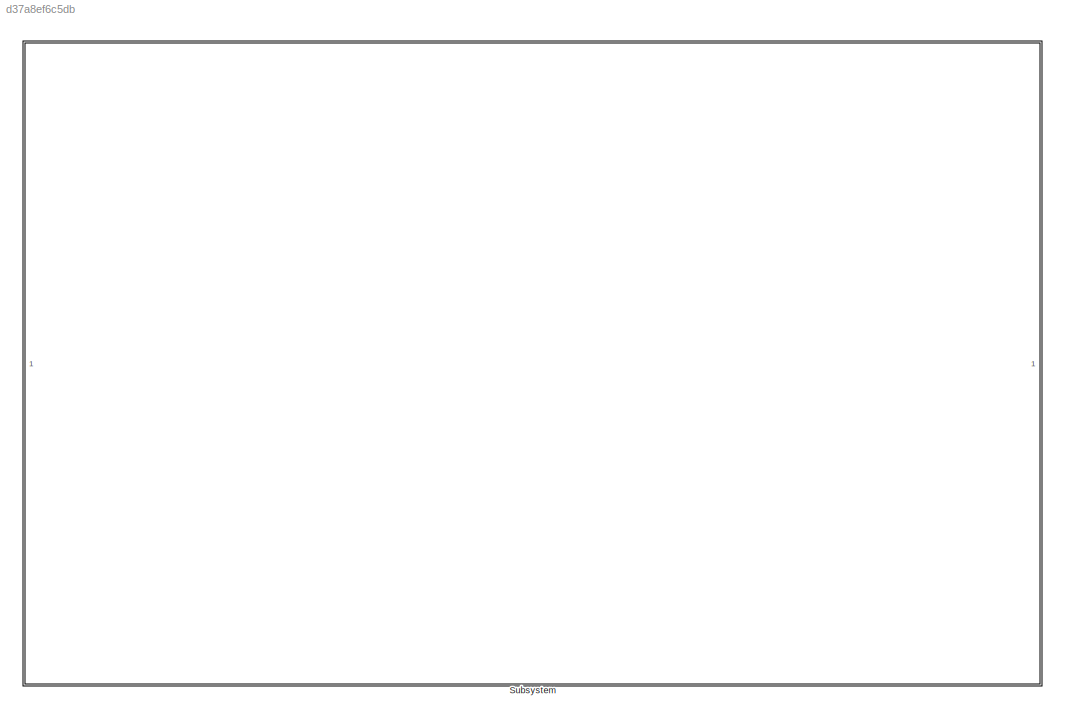
MODEL slx_d37a8ef6c5db
KIND model
CONFIG AbsTol = auto
CONFIG EnableMultiTasking = off
CONFIG FixedStep = auto
CONFIG MaxStep = auto
CONFIG MinStep = auto
CONFIG RelTol = 1e-3
CONFIG SampleTimeConstraint = Unconstrained
CONFIG SolverName = VariableStepAuto
CONFIG StartTime = 0.0
CONFIG StopTime = 10.0
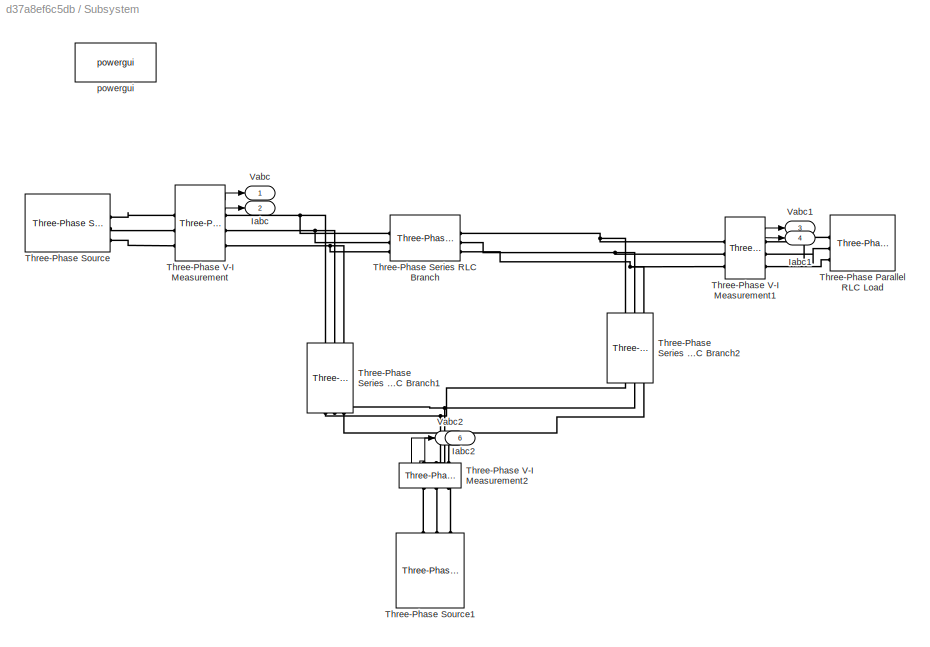
BLOCK [SubSystem] Subsystem
BLOCK [Outport] Subsystem/Iabc
  Port = 2
BLOCK [Outport] Subsystem/Iabc1
  Port = 4
BLOCK [Outport] Subsystem/Iabc2
  Port = 6
BLOCK [Reference] Subsystem/Three-Phase Parallel RLC Load  REF=spsThreePhaseParallelRLCLoadLib/Three-Phase
Parallel RLC Load
  AttributesFormatString = \n
  LibrarySourceBlock = sps_lib/Passives/Three-Phase\nParallel RLC Load
  NameLocation = right
  SourceBlock = spsThreePhaseParallelRLCLoadLib/Three-Phase\nParallel RLC Load
  SourceType = Three-Phase Parallel RLC Load
BLOCK [Reference] Subsystem/Three-Phase Series RLC Branch  REF=spsThreePhaseSeriesRLCBranchLib/Three-Phase
Series RLC Branch
  AttributesFormatString = \n
  LibrarySourceBlock = sps_lib/Passives/Three-Phase\nSeries RLC Branch
  SourceBlock = spsThreePhaseSeriesRLCBranchLib/Three-Phase\nSeries RLC Branch
  SourceType = Three-Phase Series RLC Branch
BLOCK [Reference] Subsystem/Three-Phase Series RLC Branch1  REF=spsThreePhaseSeriesRLCBranchLib/Three-Phase
Series RLC Branch
  AttributesFormatString = \n
  LibrarySourceBlock = sps_lib/Passives/Three-Phase\nSeries RLC Branch
  NameLocation = left
  SourceBlock = spsThreePhaseSeriesRLCBranchLib/Three-Phase\nSeries RLC Branch
  SourceType = Three-Phase Series RLC Branch
BLOCK [Reference] Subsystem/Three-Phase Series RLC Branch2  REF=spsThreePhaseSeriesRLCBranchLib/Three-Phase
Series RLC Branch
  AttributesFormatString = \n
  LibrarySourceBlock = sps_lib/Passives/Three-Phase\nSeries RLC Branch
  NameLocation = left
  SourceBlock = spsThreePhaseSeriesRLCBranchLib/Three-Phase\nSeries RLC Branch
  SourceType = Three-Phase Series RLC Branch
BLOCK [Reference] Subsystem/Three-Phase Source  REF=spsThreePhaseSourceLib/Three-Phase Source
  LibrarySourceBlock = sps_lib/Sources/Three-Phase Source
  SourceBlock = spsThreePhaseSourceLib/Three-Phase Source
  SourceType = Three-Phase Source
BLOCK [Reference] Subsystem/Three-Phase Source1  REF=spsThreePhaseSourceLib/Three-Phase Source
  LibrarySourceBlock = sps_lib/Sources/Three-Phase Source
  NameLocation = right
  SourceBlock = spsThreePhaseSourceLib/Three-Phase Source
  SourceType = Three-Phase Source
BLOCK [Reference] Subsystem/Three-Phase V-I Measurement  REF=spsThreePhaseVIMeasurementLib/Three-Phase
V-I Measurement
  LibrarySourceBlock = sps_lib/Sensors and Measurements/Three-Phase\nV-I Measurement
  SourceBlock = spsThreePhaseVIMeasurementLib/Three-Phase\nV-I Measurement
  SourceType = Three-Phase VI Measurement
BLOCK [Reference] Subsystem/Three-Phase V-I Measurement1  REF=spsThreePhaseVIMeasurementLib/Three-Phase
V-I Measurement
  LibrarySourceBlock = sps_lib/Sensors and Measurements/Three-Phase\nV-I Measurement
  SourceBlock = spsThreePhaseVIMeasurementLib/Three-Phase\nV-I Measurement
  SourceType = Three-Phase VI Measurement
BLOCK [Reference] Subsystem/Three-Phase V-I Measurement2  REF=spsThreePhaseVIMeasurementLib/Three-Phase
V-I Measurement
  LibrarySourceBlock = sps_lib/Sensors and Measurements/Three-Phase\nV-I Measurement
  NameLocation = right
  SourceBlock = spsThreePhaseVIMeasurementLib/Three-Phase\nV-I Measurement
  SourceType = Three-Phase VI Measurement
BLOCK [Outport] Subsystem/Vabc
BLOCK [Outport] Subsystem/Vabc1
  Port = 3
BLOCK [Outport] Subsystem/Vabc2
  Port = 5
BLOCK [Reference] Subsystem/powergui  REF=sps_lib/powergui
  LibrarySourceBlock = sps_lib/powergui
  Priority = 1
  SourceBlock = sps_lib/powergui
  SourceType = PSB option menu block
LINE Subsystem/Three-Phase V-I Measurement1:1 -> Subsystem/Vabc1:1
LINE Subsystem/Three-Phase V-I Measurement1:2 -> Subsystem/Iabc1:1
LINE Subsystem/Three-Phase V-I Measurement2:1 -> Subsystem/Vabc2:1
LINE Subsystem/Three-Phase V-I Measurement2:2 -> Subsystem/Iabc2:1
LINE Subsystem/Three-Phase V-I Measurement:1 -> Subsystem/Vabc:1
LINE Subsystem/Three-Phase V-I Measurement:2 -> Subsystem/Iabc:1
PLINE Subsystem/Three-Phase Parallel RLC Load:LConn1 -- Subsystem/Three-Phase V-I Measurement1:RConn1
PLINE Subsystem/Three-Phase Parallel RLC Load:LConn2 -- Subsystem/Three-Phase V-I Measurement1:RConn2
PLINE Subsystem/Three-Phase Parallel RLC Load:LConn3 -- Subsystem/Three-Phase V-I Measurement1:RConn3
PNET net1: Subsystem/Three-Phase Series RLC Branch1:LConn1 -- Subsystem/Three-Phase Series RLC Branch:LConn1 -- Subsystem/Three-Phase V-I Measurement:RConn1
PNET net2: Subsystem/Three-Phase Series RLC Branch1:LConn2 -- Subsystem/Three-Phase Series RLC Branch:LConn2 -- Subsystem/Three-Phase V-I Measurement:RConn2
PNET net3: Subsystem/Three-Phase Series RLC Branch1:LConn3 -- Subsystem/Three-Phase Series RLC Branch:LConn3 -- Subsystem/Three-Phase V-I Measurement:RConn3
PNET net4: Subsystem/Three-Phase Series RLC Branch1:RConn1 -- Subsystem/Three-Phase Series RLC Branch2:RConn1 -- Subsystem/Three-Phase V-I Measurement2:RConn1
PNET net5: Subsystem/Three-Phase Series RLC Branch1:RConn2 -- Subsystem/Three-Phase Series RLC Branch2:RConn2 -- Subsystem/Three-Phase V-I Measurement2:RConn2
PNET net6: Subsystem/Three-Phase Series RLC Branch1:RConn3 -- Subsystem/Three-Phase Series RLC Branch2:RConn3 -- Subsystem/Three-Phase V-I Measurement2:RConn3
PNET net7: Subsystem/Three-Phase Series RLC Branch2:LConn1 -- Subsystem/Three-Phase Series RLC Branch:RConn1 -- Subsystem/Three-Phase V-I Measurement1:LConn1
PNET net8: Subsystem/Three-Phase Series RLC Branch2:LConn2 -- Subsystem/Three-Phase Series RLC Branch:RConn2 -- Subsystem/Three-Phase V-I Measurement1:LConn2
PNET net9: Subsystem/Three-Phase Series RLC Branch2:LConn3 -- Subsystem/Three-Phase Series RLC Branch:RConn3 -- Subsystem/Three-Phase V-I Measurement1:LConn3
PLINE Subsystem/Three-Phase Source1:RConn1 -- Subsystem/Three-Phase V-I Measurement2:LConn1
PLINE Subsystem/Three-Phase Source1:RConn2 -- Subsystem/Three-Phase V-I Measurement2:LConn2
PLINE Subsystem/Three-Phase Source1:RConn3 -- Subsystem/Three-Phase V-I Measurement2:LConn3
PLINE Subsystem/Three-Phase Source:RConn1 -- Subsystem/Three-Phase V-I Measurement:LConn1
PLINE Subsystem/Three-Phase Source:RConn2 -- Subsystem/Three-Phase V-I Measurement:LConn2
PLINE Subsystem/Three-Phase Source:RConn3 -- Subsystem/Three-Phase V-I Measurement:LConn3
note: PNET lines group multi-terminal physical nets as a canonical sorted terminal list (undirected conserving connections); 2-terminal nets keep the pairwise PLINE form
